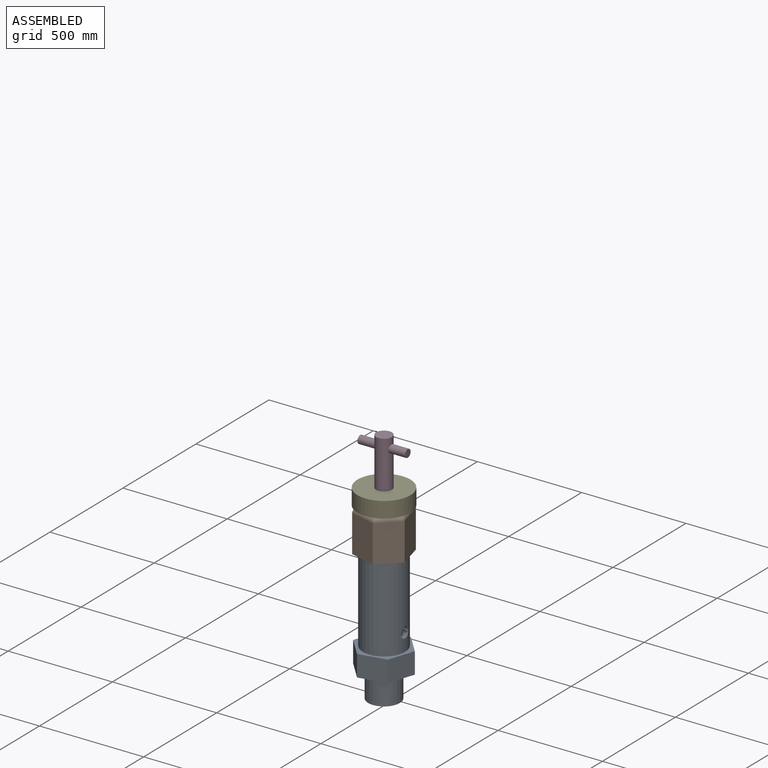
[diagram: assembled view]
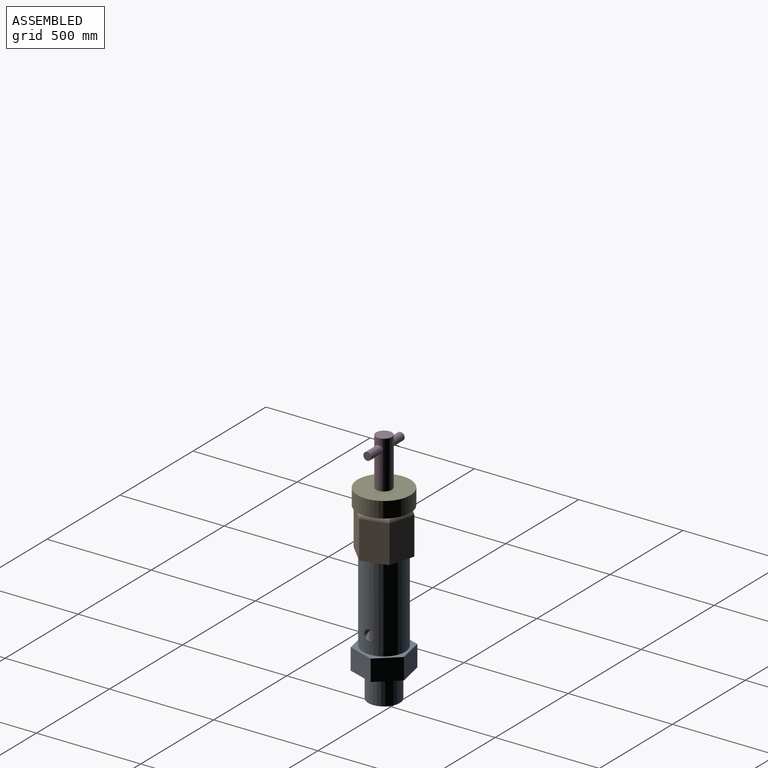
[diagram: assembled view, second angle]
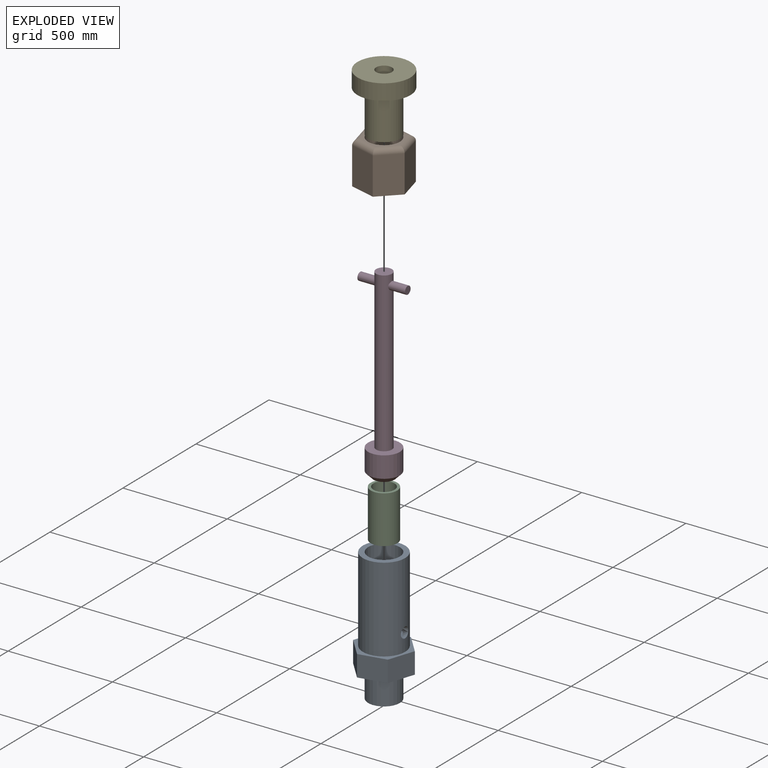
[diagram: exploded view]
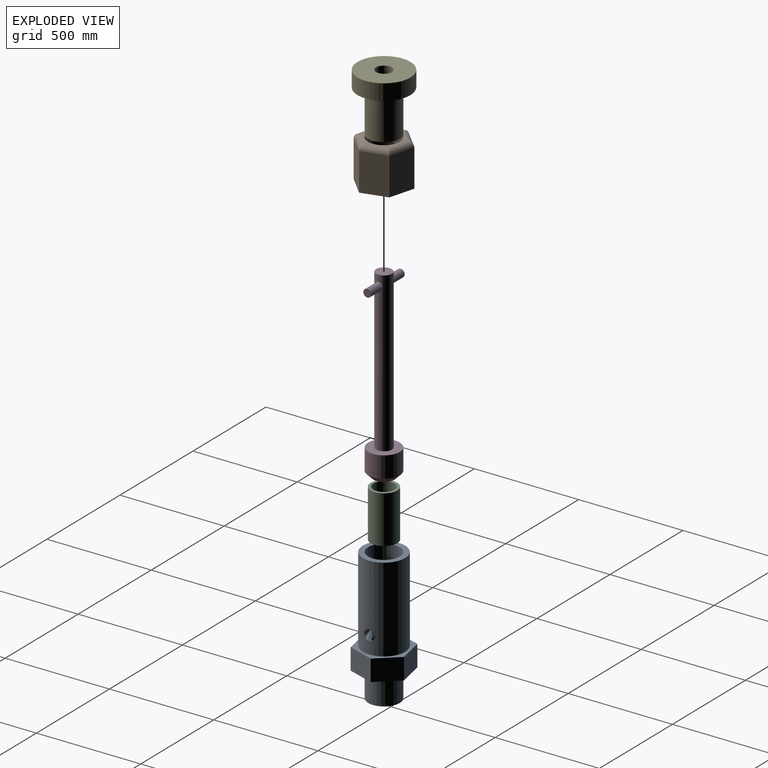
[diagram: exploded view, second angle]
ASSEMBLY  parts=5 mates=4
PART A: 17 faces, bbox 258.5x250.5x635 mm
  f0: plane 129.27x101.6mm, normal (0.2,-0.98,0), area 13409.4mm2, adj f1,f5,f6,f7
  f1: plane 125.26x101.6mm, normal (0.95,-0.32,0), area 13409.4mm2, adj f0,f2,f6,f7
  f2: plane 101.6x98.64mm, normal (0.75,0.66,0), area 13409.4mm2, adj f1,f3,f6,f7
  f3: plane 129.27x101.6mm, normal (-0.2,0.98,0), area 13409.4mm2, adj f2,f4,f6,f7
  f4: plane 125.26x101.6mm, normal (-0.95,0.32,0), area 13409.4mm2, adj f3,f5,f6,f7
  f5: plane 101.6x98.64mm, normal (-0.75,-0.66,0), area 13409.4mm2, adj f0,f4,f6,f7
  f6: plane 258.54x250.52mm, normal (0,0,-1), area 27015.3mm2, adj f0,f1,f2,f3,f4,f5,f11
  f7: plane 258.54x250.52mm, normal (0,0,1), area 12827.4mm2, adj f0,f1,f2,f3,f4,f5,f9
  f8: cylinder r=76.2mm len=355.6mm, axis (0,0,-1), area 166495mm2, adj f10,f14,f15,f16
  f9: cylinder r=101.6mm len=406.4mm, axis (0,0,-1), area 255354.8mm2, adj f7,f10,f15,f16
  f10: plane 203.2x203.2mm, normal (0,0,1), area 14187.8mm2, adj f8,f9
  f11: cylinder r=76.2mm len=152.4mm, axis (0,0,-1), area 60804.9mm2, adj f6,f12
  f12: plane 152.4x152.4mm, normal (0,0,-1), area 10134.1mm2, adj f11,f13
  f13: cylinder r=50.8mm len=254mm, axis (0,0,1), area 81073.2mm2, adj f12,f14
  f14: cone r=50.8mm half-angle=45deg, axis (0,0,1), area 12926.5mm2, adj f8,f13,f15,f16
  f15: bspline ~115.68x112.37mm, area 4998.3mm2, adj f8,f9,f14
  f16: bspline ~74.43x50.23mm, area 7671.1mm2, adj f8,f9,f14
PART B: 17 faces, bbox 245x245.7x203.2 mm
  f0: plane 177.8x122.5mm, normal (-0.26,-0.96,0), area 22580.6mm2, adj f1,f5,f7,f13
  f1: plane 177.8x90.28mm, normal (0.7,-0.71,0), area 22580.6mm2, adj f0,f2,f7,f11
  f2: plane 177.8x122.85mm, normal (0.97,0.25,0), area 22580.6mm2, adj f1,f3,f7,f12
  f3: plane 177.8x122.5mm, normal (0.26,0.96,0), area 22580.6mm2, adj f2,f4,f7,f14
  f4: plane 177.8x90.28mm, normal (-0.7,0.71,0), area 22580.6mm2, adj f3,f5,f7,f16
  f5: plane 177.8x122.85mm, normal (-0.97,-0.25,0), area 22580.6mm2, adj f0,f4,f7,f15
  f6: plane 188.95x188.41mm, normal (0,0,1), area 6543mm2, adj f10,f11,f12,f13,f14,f15,f16
  f7: plane 245.69x244.99mm, normal (0,0,-1), area 9475.1mm2, adj f0,f1,f2,f3,f4,f5,f8
  f8: cylinder r=101.6mm len=203.2mm, axis (0,0,-1), area 64858.6mm2, adj f7,f9
  f9: plane 203.2x203.2mm, normal (0,0,-1), area 14187.8mm2, adj f8,f10
  f10: cylinder r=76.2mm len=152.4mm, axis (0,0,-1), area 48643.9mm2, adj f6,f9
  f11: cylinder r=25.4mm len=108.14mm, axis (-0.71,-0.7,0), area 4641.9mm2, adj f1,f6,f12,f13
  f12: cylinder r=25.4mm len=129.29mm, axis (0.25,-0.97,0), area 4641.9mm2, adj f2,f6,f11,f14
  f13: cylinder r=25.4mm len=129.2mm, axis (-0.96,0.26,0), area 4641.9mm2, adj f0,f6,f11,f15
  f14: cylinder r=25.4mm len=129.2mm, axis (0.96,-0.26,0), area 4641.9mm2, adj f3,f6,f12,f16
  f15: cylinder r=25.4mm len=129.29mm, axis (-0.25,0.97,0), area 4641.9mm2, adj f5,f6,f13,f16
  f16: cylinder r=25.4mm len=108.14mm, axis (0.71,0.7,0), area 4641.9mm2, adj f4,f6,f14,f15
PART C: 4 faces, bbox 127x127x228.6 mm
  f0: cylinder r=50.8mm len=228.6mm, axis (0,0,-1), area 72965.9mm2, adj f2,f3
  f1: cylinder r=63.5mm len=228.6mm, axis (0,0,-1), area 91207.3mm2, adj f2,f3
  f2: plane 127x127mm, normal (0,0,1), area 4560.4mm2, adj f0,f1
  f3: plane 127x127mm, normal (0,0,-1), area 4560.4mm2, adj f0,f1
PART D: 10 faces, bbox 228.6x152.4x889 mm
  f0: cylinder r=76.2mm len=152.4mm, axis (0,0,-1), area 48643.9mm2, adj f1,f4
  f1: plane 152.4x152.4mm, normal (0,0,1), area 13681.1mm2, adj f0,f2
  f2: cylinder r=38.1mm len=762mm, axis (0,0,-1), area 180054.8mm2, adj f1,f3,f7,f8
  f3: plane 76.2x76.2mm, normal (0,0,1), area 4560.4mm2, adj f2
  f4: cone r=76.2mm half-angle=45deg, axis (0,0,1), area 14331.9mm2, adj f0,f5
  f5: sphere r=101.6mm, area 8689.4mm2, adj f4
  f6: plane 38.1x38.1mm, normal (1,0,0), area 1140.1mm2, adj f7
  f7: cylinder r=19.05mm len=81.31mm, axis (1,0,0), area 9420.7mm2, adj f2,f6
  f8: cylinder r=19.05mm len=81.31mm, axis (1,0,0), area 9420.9mm2, adj f2,f9
  f9: plane 38.1x38.1mm, normal (-1,0,0), area 1140.1mm2, adj f8
PART E: 6 faces, bbox 254x254x279.4 mm
  f0: cylinder r=127mm len=254mm, axis (0,0,1), area 60804.9mm2, adj f1,f2
  f1: plane 254x254mm, normal (0,0,-1), area 32429.3mm2, adj f0,f3
  f2: plane 254x254mm, normal (0,0,1), area 46110.4mm2, adj f0,f4
  f3: cylinder r=76.2mm len=203.2mm, axis (0,0,1), area 97287.8mm2, adj f1,f5
  f4: cylinder r=38.1mm len=279.4mm, axis (0,0,1), area 66885.4mm2, adj f2,f5
  f5: plane 152.4x152.4mm, normal (0,0,-1), area 13681.1mm2, adj f3,f4
PLACE A t=(-78526.3,-7418.48,-690.54)mm
PLACE B t=(-80558.3,-6910.48,-284.14)mm
PLACE C t=(-80558.3,-8434.48,-601.64)mm
PLACE D t=(-80050.3,-8688.48,-665.14)mm
PLACE E t=(-81574.3,-7926.48,-4.74)mm
MATE fastened D.f0 <-> A.f8  axis (0,0,-1) through (1483.7,455.52,-665.14)mm
MATE fastened E.f0 <-> A.f8  axis (0,0,-1) through (1483.7,455.52,-284.14)mm
MATE fastened C.f0 <-> A.f8  axis (0,0,-1) through (1483.7,455.52,-487.34)mm
MATE fastened E.f0 <-> B.f8  axis (0,0,-1) through (1483.7,455.52,-80.94)mm
